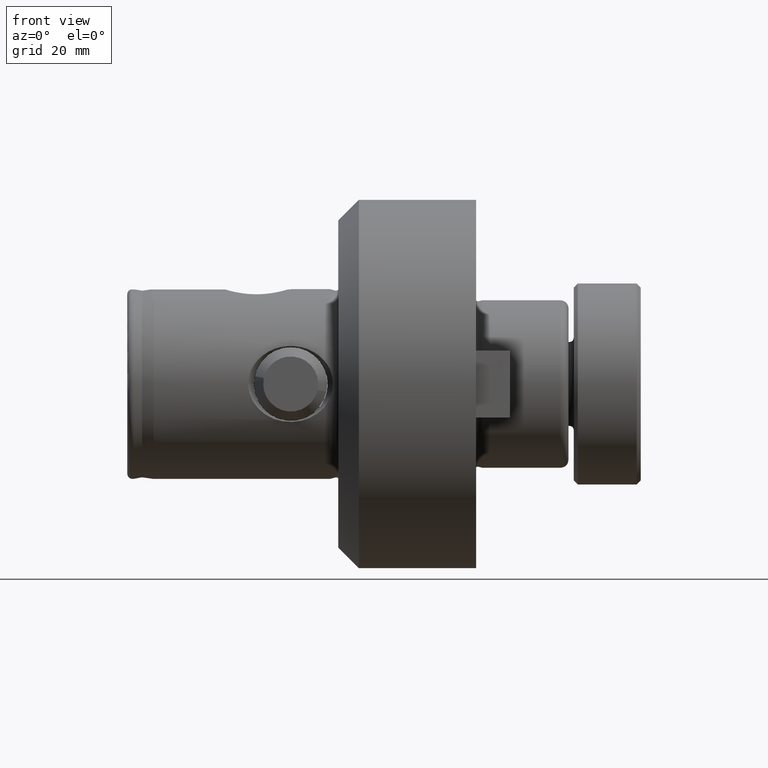
[diagram: clean part render]
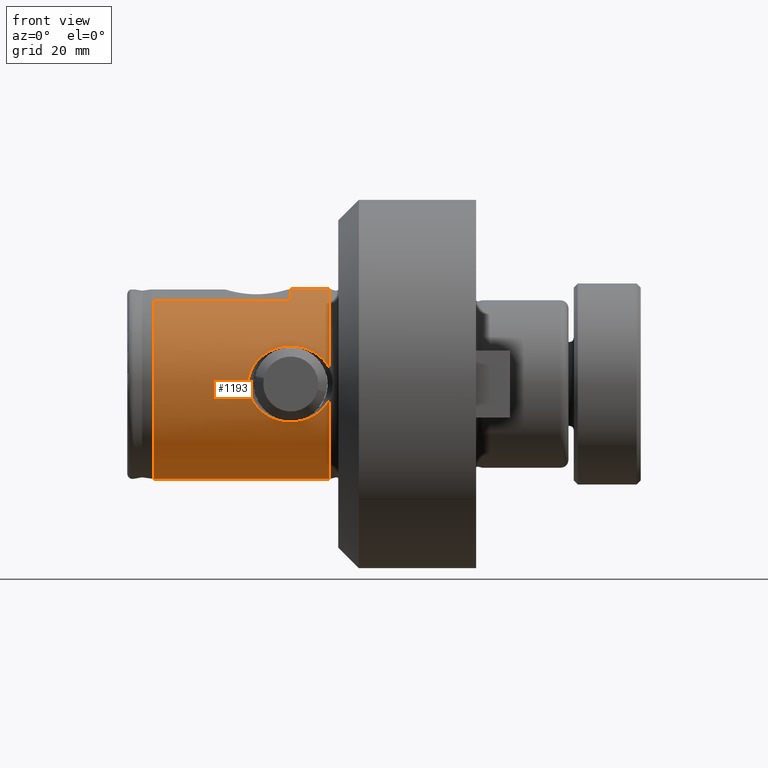
[diagram: same view with one face highlighted and labeled with its STEP entity id]
A machine part, front view. The second image highlights one B-rep face of the part: STEP entity #1193.
In plain terms, the highlighted cylindrical surface (partial cylindrical patch) has radius 18 mm, axis along (-1, -0, -0).
Its self-contained STEP definition (entity closure, byte-faithful):
#88 = CARTESIAN_POINT ( 'NONE',  ( 37.99507072658234800, -17.63819116553966600, -3.608611484859333400 ) ) ;
#154 = DIRECTION ( 'NONE',  ( 1.000000000000000000, 0.0000000000000000000, 0.0000000000000000000 ) ) ;
#230 = CARTESIAN_POINT ( 'NONE',  ( 26.08701584136921500, -17.07013154472706200, -5.712141590260358700 ) ) ;
#289 = CARTESIAN_POINT ( 'NONE',  ( 24.34938088761634500, -17.53280446781713000, -4.078135548785400700 ) ) ;
#296 = CARTESIAN_POINT ( 'NONE',  ( 38.41455850893560600, -17.77522644697580000, 2.835722969320496400 ) ) ;
#324 = CIRCLE ( 'NONE', #3418, 17.99999999999999600 ) ;
#349 = CARTESIAN_POINT ( 'NONE',  ( 23.17095251667247900, -17.91584822628499700, 1.751371063957981800 ) ) ;
#377 = CARTESIAN_POINT ( 'NONE',  ( 23.30497479576797900, -17.86964433764415400, 2.172723985473331300 ) ) ;
#383 = CARTESIAN_POINT ( 'NONE',  ( 38.41455850893560600, 0.0000000000000000000, 0.0000000000000000000 ) ) ;
#385 = VERTEX_POINT ( 'NONE', #5518 ) ;
#886 = CARTESIAN_POINT ( 'NONE',  ( 29.09236604569098400, -16.58033015242459700, -7.007061721065090500 ) ) ;
#896 = VECTOR ( 'NONE', #154, 1000.000000000000000 ) ;
#952 = CARTESIAN_POINT ( 'NONE',  ( 22.97804128174149300, -17.98345985487322500, -0.8845549578120572900 ) ) ;
#988 = DIRECTION ( 'NONE',  ( 0.0000000000000000000, 0.0000000000000000000, 1.000000000000000000 ) ) ;
#1015 = CARTESIAN_POINT ( 'NONE',  ( 24.35930608591733200, -17.52980924945723400, 4.090973167800263400 ) ) ;
#1047 = CARTESIAN_POINT ( 'NONE',  ( 26.65561954242215100, -16.94405153630165700, 6.078050009428261900 ) ) ;
#1173 = ORIENTED_EDGE ( 'NONE', *, *, #8468, .T. ) ;
#1193 = ADVANCED_FACE ( 'NONE', ( #2962 ), #6311, .T. ) ;
#1352 = DIRECTION ( 'NONE',  ( -1.000000000000000000, -0.0000000000000000000, -0.0000000000000000000 ) ) ;
#1408 = CIRCLE ( 'NONE', #4319, 17.99999999999999600 ) ;
#1427 = CARTESIAN_POINT ( 'NONE',  ( 36.55468267699610200, -17.22472107593113600, -5.235227008662177700 ) ) ;
#1460 = CARTESIAN_POINT ( 'NONE',  ( 35.10789554115506700, -16.89673571953524700, -6.208021203796722200 ) ) ;
#1470 = VECTOR ( 'NONE', #3554, 1000.000000000000000 ) ;
#1536 = CARTESIAN_POINT ( 'NONE',  ( 27.82750759339947400, -16.73481497316496200, -6.630787486854876200 ) ) ;
#1538 = CARTESIAN_POINT ( 'NONE',  ( 31.00000000000000000, -8.499999999999996400, 15.86663165262242400 ) ) ;
#1539 = CIRCLE ( 'NONE', #3105, 17.99999999999999600 ) ;
#1540 = ORIENTED_EDGE ( 'NONE', *, *, #5667, .T. ) ;
#1559 = ORIENTED_EDGE ( 'NONE', *, *, #7890, .F. ) ;
#1561 = DIRECTION ( 'NONE',  ( 0.0000000000000000000, 0.0000000000000000000, 1.000000000000000000 ) ) ;
#1564 = CARTESIAN_POINT ( 'NONE',  ( 25.56070703825799800, -17.19484585362744900, -5.330017455493421400 ) ) ;
#1614 = CARTESIAN_POINT ( 'NONE',  ( 0.0000000000000000000, 0.0000000000000000000, 0.0000000000000000000 ) ) ;
#1616 = CARTESIAN_POINT ( 'NONE',  ( 25.23217109824212700, -17.28061527093934300, -5.048216595888842300 ) ) ;
#1626 = DIRECTION ( 'NONE',  ( -1.000000000000000000, -0.0000000000000000000, -0.0000000000000000000 ) ) ;
#1656 = CARTESIAN_POINT ( 'NONE',  ( 23.85750885869408900, -17.68523608111670600, 3.371825672240125600 ) ) ;
#1682 = CARTESIAN_POINT ( 'NONE',  ( 23.02425016441473800, -17.96723550562960300, 1.106892443189611400 ) ) ;
#1707 = CARTESIAN_POINT ( 'NONE',  ( 29.11157131061685600, -16.57868659642610300, 7.010930212151297500 ) ) ;
#1737 = CARTESIAN_POINT ( 'NONE',  ( 22.94367595310295000, -17.99580027013313800, 0.4471889289731271200 ) ) ;
#1744 = AXIS2_PLACEMENT_3D ( 'NONE', #383, #4395, #5085 ) ;
#1774 = ORIENTED_EDGE ( 'NONE', *, *, #5719, .T. ) ;
#1932 = ORIENTED_EDGE ( 'NONE', *, *, #2748, .T. ) ;
#2018 = CIRCLE ( 'NONE', #1744, 17.99999999999999600 ) ;
#2095 = DIRECTION ( 'NONE',  ( -1.000000000000000000, -0.0000000000000000000, -0.0000000000000000000 ) ) ;
#2116 = CARTESIAN_POINT ( 'NONE',  ( 38.41455850893560600, 0.0000000000000000000, 0.0000000000000000000 ) ) ;
#2122 = CARTESIAN_POINT ( 'NONE',  ( 33.90767941334523500, -16.68575959259132800, -6.763301545005889500 ) ) ;
#2167 = ORIENTED_EDGE ( 'NONE', *, *, #2429, .T. ) ;
#2168 = CARTESIAN_POINT ( 'NONE',  ( 0.0000000000000000000, -8.500000000000000000, 15.86663165262242700 ) ) ;
#2214 = CARTESIAN_POINT ( 'NONE',  ( 23.85309246069682100, -17.68667767651106700, -3.364011678637005800 ) ) ;
#2273 = CARTESIAN_POINT ( 'NONE',  ( 28.66104706392762900, -16.62489959843416500, -6.901745302739102300 ) ) ;
#2300 = CARTESIAN_POINT ( 'NONE',  ( 26.83486332975320500, -16.91066245934652900, -6.167710642925291300 ) ) ;
#2332 = CARTESIAN_POINT ( 'NONE',  ( 31.97293723778898300, -16.51885065342714000, 7.150425261665531300 ) ) ;
#2362 = CARTESIAN_POINT ( 'NONE',  ( 24.63768963552766800, -17.44745180740875100, 4.429074306236845600 ) ) ;
#2394 = CARTESIAN_POINT ( 'NONE',  ( 30.41852971967278000, -16.50049754671717400, 7.192609744928046400 ) ) ;
#2401 = CARTESIAN_POINT ( 'NONE',  ( 22.93190200199920200, -17.99999999999999600, 3.085024895232098400E-016 ) ) ;
#2422 = CARTESIAN_POINT ( 'NONE',  ( 37.18792591636155700, -17.39580606940595300, 4.634874230737763900 ) ) ;
#2429 = EDGE_CURVE ( 'NONE', #8126, #8479, #5710, .T. ) ;
#2746 = CARTESIAN_POINT ( 'NONE',  ( 38.22202641015763200, -17.71137844337933100, -3.235942854828808300 ) ) ;
#2748 = EDGE_CURVE ( 'NONE', #8326, #4757, #324, .T. ) ;
#2771 = CARTESIAN_POINT ( 'NONE',  ( 36.21322769332758900, -17.13878982586033200, -5.507046361843748600 ) ) ;
#2802 = CARTESIAN_POINT ( 'NONE',  ( 31.29240741784634100, -16.48024312334201700, -7.240015666940877300 ) ) ;
#2815 = VECTOR ( 'NONE', #1352, 1000.000000000000000 ) ;
#2855 = CARTESIAN_POINT ( 'NONE',  ( 0.0000000000000000000, 0.0000000000000000000, 17.99999999999999600 ) ) ;
#2962 = FACE_OUTER_BOUND ( 'NONE', #4955, .T. ) ;
#3034 = CARTESIAN_POINT ( 'NONE',  ( 25.24046607749859600, -17.27841695341686900, 5.055640001721183600 ) ) ;
#3058 = CARTESIAN_POINT ( 'NONE',  ( 33.05791230149482400, -16.59505067668716200, 6.972935452718093800 ) ) ;
#3067 = AXIS2_PLACEMENT_3D ( 'NONE', #1614, #6953, #1561 ) ;
#3105 = AXIS2_PLACEMENT_3D ( 'NONE', #3555, #8242, #5663 ) ;
#3111 = CARTESIAN_POINT ( 'NONE',  ( 24.77460461053108900, -17.40800939251689500, -4.581184096426447600 ) ) ;
#3418 = AXIS2_PLACEMENT_3D ( 'NONE', #2116, #2095, #6128 ) ;
#3554 = DIRECTION ( 'NONE',  ( -1.000000000000000000, -0.0000000000000000000, -0.0000000000000000000 ) ) ;
#3555 = CARTESIAN_POINT ( 'NONE',  ( 31.00000000000000000, 0.0000000000000000000, 0.0000000000000000000 ) ) ;
#3617 = CARTESIAN_POINT ( 'NONE',  ( 35.11280500872538800, -16.89776905071099800, 6.205157255918479100 ) ) ;
#3729 = CARTESIAN_POINT ( 'NONE',  ( 26.28103683236056700, -17.02437799103098500, 5.851796466726586500 ) ) ;
#3918 = VERTEX_POINT ( 'NONE', #4638 ) ;
#3974 = VERTEX_POINT ( 'NONE', #1538 ) ;
#4133 = CARTESIAN_POINT ( 'NONE',  ( 30.41020211864762900, -16.48695642536555500, -7.225324597065638300 ) ) ;
#4219 = CARTESIAN_POINT ( 'NONE',  ( 38.41455850893560600, -17.77522644697580000, 2.835722969320496400 ) ) ;
#4248 = CARTESIAN_POINT ( 'NONE',  ( 23.15830401345508000, -17.92017665140760100, -1.747722691840147600 ) ) ;
#4290 = CARTESIAN_POINT ( 'NONE',  ( 38.22231277592995000, -17.71147340875380700, 3.235347581223305000 ) ) ;
#4311 = CARTESIAN_POINT ( 'NONE',  ( 24.78358047319915500, -17.40545715193043500, 4.590845063067936500 ) ) ;
#4319 = AXIS2_PLACEMENT_3D ( 'NONE', #5646, #1626, #988 ) ;
#4337 = CARTESIAN_POINT ( 'NONE',  ( 34.51937693814514300, -16.79320269221629400, 6.480585405933672900 ) ) ;
#4391 = CARTESIAN_POINT ( 'NONE',  ( 34.31726394228275700, -16.76025306473324200, 6.565121031389972800 ) ) ;
#4395 = DIRECTION ( 'NONE',  ( -1.000000000000000000, -0.0000000000000000000, -0.0000000000000000000 ) ) ;
#4638 = CARTESIAN_POINT ( 'NONE',  ( 5.000000000000004400, -8.500000000000000000, 15.86663165262242700 ) ) ;
#4755 = CARTESIAN_POINT ( 'NONE',  ( 37.48000134479384100, -17.48095693202914100, -4.306275557987755900 ) ) ;
#4757 = VERTEX_POINT ( 'NONE', #8458 ) ;
#4795 = B_SPLINE_CURVE_WITH_KNOTS ( 'NONE', 3,
 ( #4868, #2746, #88, #4755, #5440, #1427, #2771, #5467, #1460, #2122, #6819, #2802, #4133, #886, #2273, #1536, #8474, #2300, #6983, #6219, #230, #1564, #1616, #3111, #8274, #289, #4962, #2214, #5601, #6310, #4248, #952, #7803, #6902 ),
 .UNSPECIFIED., .F., .F.,
 ( 4, 2, 2, 2, 2, 2, 2, 2, 2, 2, 2, 2, 2, 2, 2, 2, 4 ),
 ( 4.577879042442670400E-007, 0.001322458026375350800, 0.002644458264846458700, 0.003966458503317566400, 0.005288458741788674100, 0.007932459218730869600, 0.01057645969567306400, 0.01189845993414416000, 0.01322046017261525200, 0.01388146029185079700, 0.01454246041108634600, 0.01586446064955743300, 0.01652546076879298600, 0.01718646088802853700, 0.01850846112649963800, 0.01983046136497074200, 0.02115246160344184300 ),
 .UNSPECIFIED. ) ;
#4803 = LINE ( 'NONE', #5942, #2815 ) ;
#4868 = CARTESIAN_POINT ( 'NONE',  ( 38.41455850893560600, -17.77522644697580400, -2.835722969320488000 ) ) ;
#4955 = EDGE_LOOP ( 'NONE', ( #7402, #1932, #1540, #2167, #5018, #1173, #1774, #6173, #1559 ) ) ;
#4956 = EDGE_CURVE ( 'NONE', #8326, #7359, #4803, .T. ) ;
#4962 = CARTESIAN_POINT ( 'NONE',  ( 24.21894353323254000, -17.57260398758735000, -3.903507979642044700 ) ) ;
#4968 = CARTESIAN_POINT ( 'NONE',  ( 28.68138952076552800, -16.62253385687451900, 6.907455158285630500 ) ) ;
#4999 = CARTESIAN_POINT ( 'NONE',  ( 37.47501851690158500, -17.47947963081395200, 4.312294449917645900 ) ) ;
#5018 = ORIENTED_EDGE ( 'NONE', *, *, #8037, .T. ) ;
#5027 = CARTESIAN_POINT ( 'NONE',  ( 23.64566208641628000, -17.75474333346021900, 2.989419509541598500 ) ) ;
#5051 = CARTESIAN_POINT ( 'NONE',  ( 23.38329582901154800, -17.84289450996995500, 2.381806135342093600 ) ) ;
#5080 = CARTESIAN_POINT ( 'NONE',  ( 27.43382822492043600, -16.79854006849519600, 6.469360551794834700 ) ) ;
#5085 = DIRECTION ( 'NONE',  ( 0.0000000000000000000, 0.0000000000000000000, 1.000000000000000000 ) ) ;
#5440 = CARTESIAN_POINT ( 'NONE',  ( 37.19181581959278300, -17.39685469061268800, -4.631205550346418700 ) ) ;
#5467 = CARTESIAN_POINT ( 'NONE',  ( 35.49110008079966900, -16.97506229770261400, -5.992740301033032700 ) ) ;
#5518 = CARTESIAN_POINT ( 'NONE',  ( 31.00000000000000000, 0.0000000000000000000, 17.99999999999999600 ) ) ;
#5601 = CARTESIAN_POINT ( 'NONE',  ( 23.64288762371046500, -17.75566459521487100, -2.983681196165110600 ) ) ;
#5641 = CARTESIAN_POINT ( 'NONE',  ( 24.22687376565739800, -17.57016493283338900, 3.914524254010225900 ) ) ;
#5646 = CARTESIAN_POINT ( 'NONE',  ( 5.000000000000004400, 0.0000000000000000000, 0.0000000000000000000 ) ) ;
#5658 = LINE ( 'NONE', #2855, #1470 ) ;
#5663 = DIRECTION ( 'NONE',  ( 0.0000000000000000000, 0.0000000000000000000, -1.000000000000000000 ) ) ;
#5667 = EDGE_CURVE ( 'NONE', #4757, #8126, #4795, .T. ) ;
#5668 = CARTESIAN_POINT ( 'NONE',  ( 22.98988810258071400, -17.97940423527511600, 0.8887230419490969000 ) ) ;
#5691 = CARTESIAN_POINT ( 'NONE',  ( 22.93190200199920200, -17.99999999999999600, 3.085024895232098400E-016 ) ) ;
#5710 = B_SPLINE_CURVE_WITH_KNOTS ( 'NONE', 3,
 ( #5691, #7694, #1737, #5668, #1682, #6373, #349, #377, #5051, #5027, #1656, #5641, #1015, #2362, #4311, #3034, #7724, #3729, #1047, #5080, #5723, #4968, #1707, #6399, #2394, #7109, #6339, #7077, #2332, #8412, #3058, #7024, #7756, #4391, #4337, #3617, #7667, #5755, #6422, #2422, #4999, #8302, #4290, #296 ),
 .UNSPECIFIED., .F., .F.,
 ( 4, 2, 2, 2, 2, 2, 2, 2, 2, 2, 2, 2, 2, 2, 2, 2, 2, 2, 2, 2, 2, 4 ),
 ( 0.02115246160344184300, 0.02181163685404288400, 0.02247081210464392900, 0.02312998735524497000, 0.02378916260584601100, 0.02510751310704809800, 0.02576668835764913900, 0.02642586360825018000, 0.02774421410945226600, 0.02906256461065435300, 0.03038091511185643500, 0.03169926561305851800, 0.03301761611426060100, 0.03367679136486163800, 0.03433596661546267600, 0.03565431711666477300, 0.03631349236726581100, 0.03697266761786684900, 0.03829101811906890400, 0.03960936862027096500, 0.04092771912147302000, 0.04224606962267507500 ),
 .UNSPECIFIED. ) ;
#5719 = EDGE_CURVE ( 'NONE', #385, #3974, #1539, .T. ) ;
#5723 = CARTESIAN_POINT ( 'NONE',  ( 27.83873325934379400, -16.73302960472693000, 6.635306235133275400 ) ) ;
#5755 = CARTESIAN_POINT ( 'NONE',  ( 36.21364680603051100, -17.13888977652443300, 5.506739943906402400 ) ) ;
#5942 = CARTESIAN_POINT ( 'NONE',  ( 0.0000000000000000000, 2.204364238465235000E-015, -17.99999999999999600 ) ) ;
#6010 = CARTESIAN_POINT ( 'NONE',  ( 38.41455850893560600, 2.204364238465235000E-015, -17.99999999999999600 ) ) ;
#6128 = DIRECTION ( 'NONE',  ( 0.0000000000000000000, 0.0000000000000000000, 1.000000000000000000 ) ) ;
#6173 = ORIENTED_EDGE ( 'NONE', *, *, #6733, .F. ) ;
#6219 = CARTESIAN_POINT ( 'NONE',  ( 26.26807447496163000, -17.02921293655131100, -5.832704614802509900 ) ) ;
#6310 = CARTESIAN_POINT ( 'NONE',  ( 23.29528484649193500, -17.87247591824912300, -2.177288049322128000 ) ) ;
#6311 = CYLINDRICAL_SURFACE ( 'NONE', #3067, 17.99999999999999600 ) ;
#6339 = CARTESIAN_POINT ( 'NONE',  ( 31.30974720235424900, -16.49823352362514600, 7.197811783345347400 ) ) ;
#6373 = CARTESIAN_POINT ( 'NONE',  ( 23.11478158759928900, -17.93545795733993500, 1.538216647952700200 ) ) ;
#6399 = CARTESIAN_POINT ( 'NONE',  ( 29.97935113376584900, -16.51777580569728300, 7.153256191057049100 ) ) ;
#6422 = CARTESIAN_POINT ( 'NONE',  ( 36.55892626127640500, -17.22586525208656700, 5.231223017239342400 ) ) ;
#6553 = LINE ( 'NONE', #2168, #896 ) ;
#6733 = EDGE_CURVE ( 'NONE', #3918, #3974, #6553, .T. ) ;
#6819 = CARTESIAN_POINT ( 'NONE',  ( 33.06418919238630100, -16.58110238672853100, -7.005946324575756300 ) ) ;
#6902 = CARTESIAN_POINT ( 'NONE',  ( 22.93190200199920200, -17.99999999999999600, 3.085024895232098400E-016 ) ) ;
#6953 = DIRECTION ( 'NONE',  ( -1.000000000000000000, -0.0000000000000000000, -0.0000000000000000000 ) ) ;
#6983 = CARTESIAN_POINT ( 'NONE',  ( 26.64157620203353700, -16.94955171960910800, -6.060299734026394000 ) ) ;
#7024 = CARTESIAN_POINT ( 'NONE',  ( 33.69317158907113500, -16.67064728046171100, 6.789249089393552000 ) ) ;
#7077 = CARTESIAN_POINT ( 'NONE',  ( 31.75299422472887300, -16.50963188584525900, 7.171628745439575100 ) ) ;
#7109 = CARTESIAN_POINT ( 'NONE',  ( 31.08550284957112100, -16.49607939498168800, 7.202734074813107200 ) ) ;
#7359 = VERTEX_POINT ( 'NONE', #7789 ) ;
#7402 = ORIENTED_EDGE ( 'NONE', *, *, #4956, .F. ) ;
#7514 = CARTESIAN_POINT ( 'NONE',  ( 38.41455850893560600, 0.0000000000000000000, 17.99999999999999600 ) ) ;
#7667 = CARTESIAN_POINT ( 'NONE',  ( 35.49130736388082900, -16.97510437362035800, 5.992625391793070300 ) ) ;
#7694 = CARTESIAN_POINT ( 'NONE',  ( 22.93190200199918000, -18.00000000000001100, 0.2223681862393992200 ) ) ;
#7724 = CARTESIAN_POINT ( 'NONE',  ( 25.57051944790432800, -17.19230766410023400, 5.338307320903718200 ) ) ;
#7756 = CARTESIAN_POINT ( 'NONE',  ( 33.90419519246360400, -16.69896088935174200, 6.719494189788391300 ) ) ;
#7789 = CARTESIAN_POINT ( 'NONE',  ( 5.000000000000004400, 2.204364238465235000E-015, -17.99999999999999600 ) ) ;
#7803 = CARTESIAN_POINT ( 'NONE',  ( 22.93190200199918400, -18.00000000000001400, -0.4459675859626643400 ) ) ;
#7890 = EDGE_CURVE ( 'NONE', #7359, #3918, #1408, .T. ) ;
#8037 = EDGE_CURVE ( 'NONE', #8479, #8462, #2018, .T. ) ;
#8126 = VERTEX_POINT ( 'NONE', #2401 ) ;
#8242 = DIRECTION ( 'NONE',  ( 1.000000000000000000, 0.0000000000000000000, 0.0000000000000000000 ) ) ;
#8274 = CARTESIAN_POINT ( 'NONE',  ( 24.62724907952210500, -17.45048579386305200, -4.417122096926793700 ) ) ;
#8302 = CARTESIAN_POINT ( 'NONE',  ( 37.99157687428585500, -17.63708151982495700, 3.614062402598967600 ) ) ;
#8326 = VERTEX_POINT ( 'NONE', #6010 ) ;
#8412 = CARTESIAN_POINT ( 'NONE',  ( 32.62784339102091000, -16.55653905059475400, 7.062934800613086300 ) ) ;
#8458 = CARTESIAN_POINT ( 'NONE',  ( 38.41455850893560600, -17.77522644697580400, -2.835722969320488000 ) ) ;
#8462 = VERTEX_POINT ( 'NONE', #7514 ) ;
#8468 = EDGE_CURVE ( 'NONE', #8462, #385, #5658, .T. ) ;
#8474 = CARTESIAN_POINT ( 'NONE',  ( 27.42298261577181900, -16.80032814206620600, -6.464797898938756200 ) ) ;
#8479 = VERTEX_POINT ( 'NONE', #4219 ) ;